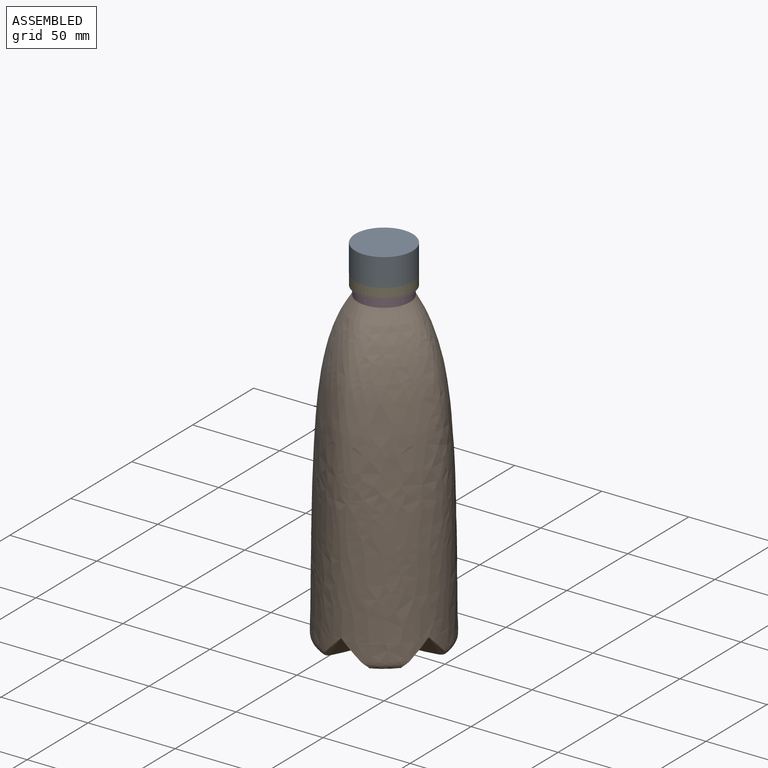
[diagram: assembled view]
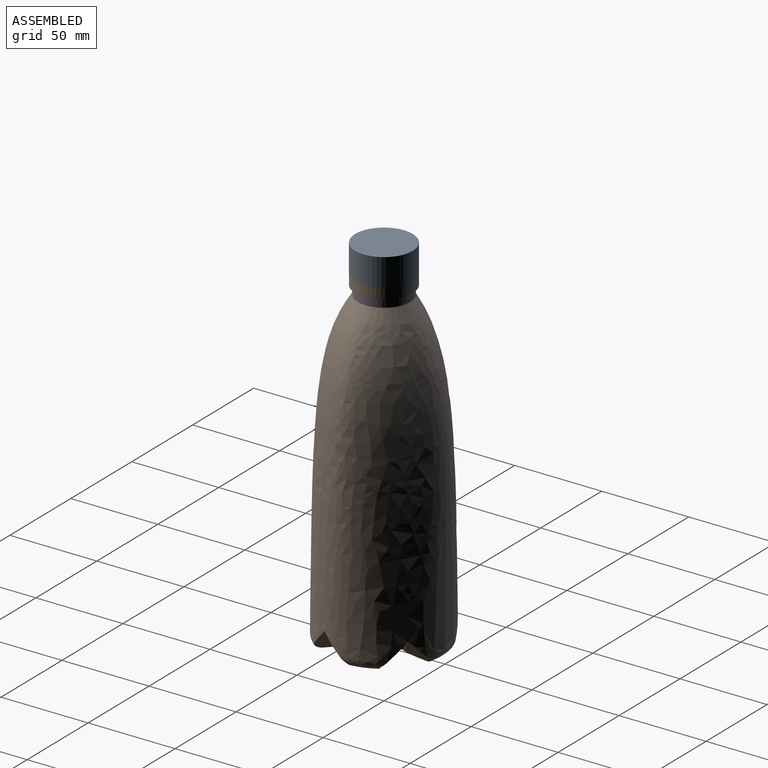
[diagram: assembled view, second angle]
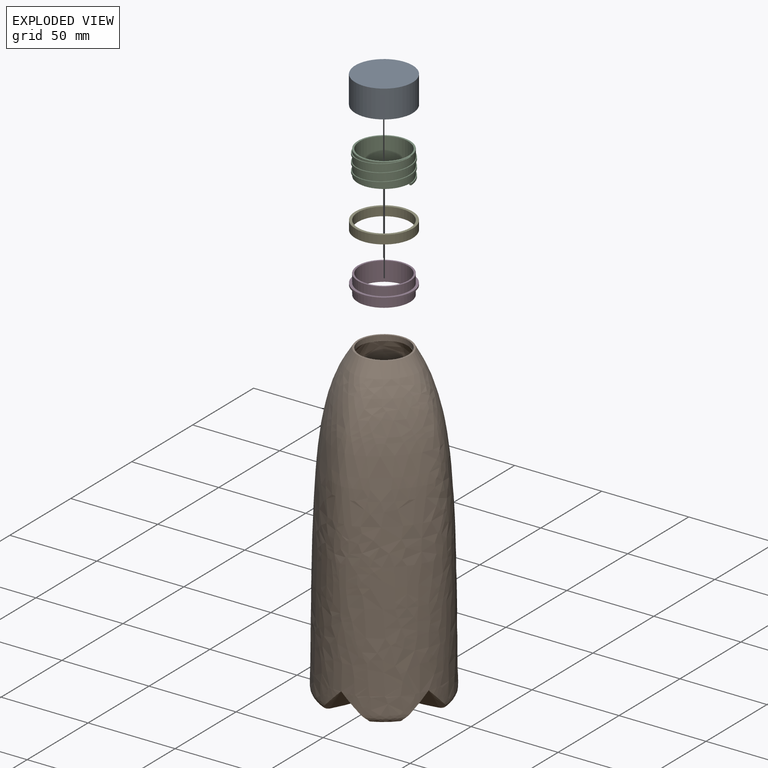
[diagram: exploded view]
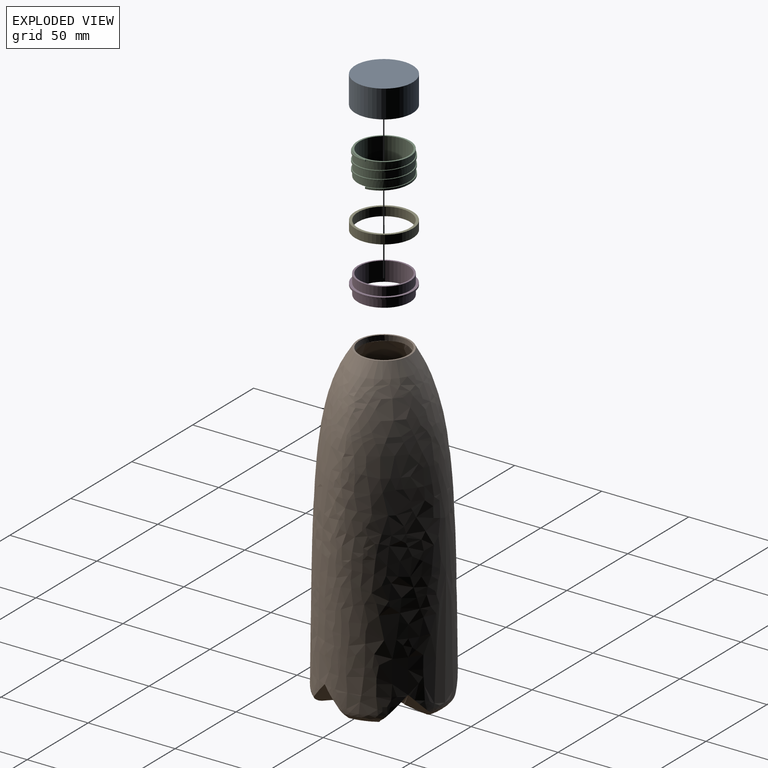
[diagram: exploded view, second angle]
ASSEMBLY  parts=5 mates=4
PART A: 16 faces, bbox 33x35.9x16.2 mm
  f0: cylinder r=15mm len=30mm, axis (0,0,-1), area 345.7mm2, adj f1,f3,f8,f11
  f1: cylinder r=15mm len=30mm, axis (0,0,-1), area 345.5mm2, adj f0,f2,f8,f11
  f2: cylinder r=15mm len=30mm, axis (0,0,-1), area 135.5mm2, adj f1,f5,f8
  f3: cylinder r=15mm len=30mm, axis (0,0,-1), area 314.2mm2, adj f0,f6,f10,f11
  f4: cylinder r=16.5mm len=33mm, axis (0,0,-1), area 1658.8mm2, adj f5,f7
  f5: plane 33x33mm, normal (0,0,-1), area 137.4mm2, adj f2,f4,f8,f9,f11
  f6: plane 30x30mm, normal (0,0,-1), area 392.7mm2, adj f3,f12
  f7: plane 33x33mm, normal (0,0,1), area 855.3mm2, adj f4
  f8: bspline ~35.88x31.07mm, area 143.1mm2, adj f0,f1,f2,f5,f9,f10
  f9: cylinder r=15.54mm len=31.07mm, axis (0,0,1), area 281.9mm2, adj f5,f8,f10,f11
  f10: plane 1x0.54mm, normal (0,-1,0), area 0.5mm2, adj f3,f8,f9,f11
  f11: bspline ~35.88x31.07mm, area 154.2mm2, adj f0,f1,f3,f5,f9,f10
  f12: cylinder r=10mm len=20mm, axis (0,0,1), area 188.5mm2, adj f6,f13
  f13: plane 20x20mm, normal (0,0,-1), area 59.7mm2, adj f12,f14
  f14: cylinder r=9mm len=18mm, axis (0,0,-1), area 113.1mm2, adj f13,f15
  f15: plane 18x18mm, normal (0,0,-1), area 254.5mm2, adj f14
PART B: 51 faces, bbox 80.7x89.6x185 mm
  f0: offset ~166.62x76.41mm, area 29483.3mm2, adj f1,f2,f3,f4,f49,f50
  f1: plane 9.25x9.25mm, normal (0,0,1), area 1.2mm2, adj f0,f4
  f2: plane 9.26x9.26mm, normal (0,0,1), area 1.2mm2, adj f0,f4
  f3: plane 9.25x9.25mm, normal (0,0,1), area 1.2mm2, adj f0,f4
  f4: cylinder r=14mm len=28mm, axis (0,0,1), area 263.3mm2, adj f0,f1,f2,f3,f5,f49
  f5: plane 30x30mm, normal (0,0,1), area 91.1mm2, adj f4,f6
  f6: bspline ~180x75.26mm, area 35029.7mm2, adj f5,f7,f8,f15,f16,f17,f18,f19
  f7: bspline ~15x14.29mm, area 8.3mm2, adj f6,f8,f48
  f8: bspline ~14.52x13.84mm, area 42.3mm2, adj f6,f7,f9,f15,f48
  f9: plane 60.07x57.86mm, normal (0,0,-1), area 1283.8mm2, adj f8,f10,f12,f13,f15,f16,f17,f20
  f10: bspline ~21x15mm, area 99mm2, adj f9,f11,f12
  f11: bspline ~15x14.75mm, area 28.7mm2, adj f10,f29,f30,f31,f32
  f12: bspline ~26.39x15mm, area 146.2mm2, adj f9,f10,f13
  f13: bspline ~21x15mm, area 101.1mm2, adj f9,f12,f14
  f14: bspline ~15x14.75mm, area 25mm2, adj f13,f28,f29
  f15: bspline ~16.7x15mm, area 149.7mm2, adj f6,f8,f9,f16
  f16: bspline ~22.4x17.77mm, area 206.5mm2, adj f6,f9,f15,f17
  f17: bspline ~20.15x15mm, area 149.7mm2, adj f6,f9,f16,f18,f20
  f18: bspline ~15x12.83mm, area 42mm2, adj f6,f17,f19,f20
  f19: bspline ~15x11.91mm, area 7.7mm2, adj f6,f18,f20
  f20: bspline ~22.34x11.37mm, area 134.3mm2, adj f6,f9,f17,f18,f19,f21,f22
  f21: bspline ~15.27x15mm, area 9mm2, adj f6,f20,f22
  f22: bspline ~15.2x14.93mm, area 42.5mm2, adj f6,f9,f20,f21,f23
  f23: bspline ~18.31x15mm, area 149.8mm2, adj f6,f9,f22,f24
  f24: bspline ~25.4x15mm, area 206.5mm2, adj f6,f9,f23,f25
  f25: bspline ~21.64x15mm, area 149.8mm2, adj f6,f9,f24,f26,f28
  f26: bspline ~15x12.8mm, area 42.1mm2, adj f6,f25,f27,f28
  f27: bspline ~15x13.86mm, area 8mm2, adj f6,f26,f28
  f28: bspline ~23.19x18.42mm, area 135.4mm2, adj f6,f9,f14,f25,f26,f27,f29
  f29: bspline ~29.65x15.98mm, area 15.8mm2, adj f6,f11,f14,f28
  f30: bspline ~15x14.83mm, area 1.4mm2, adj f6,f11
  f31: bspline ~15x14.83mm, area 1.1mm2, adj f6,f11,f32
  f32: bspline ~23.53x18.91mm, area 135.3mm2, adj f6,f9,f11,f31,f33,f34,f35
  f33: bspline ~15x13.86mm, area 8mm2, adj f6,f32,f34
  f34: bspline ~15x12.8mm, area 42.1mm2, adj f6,f32,f33,f35
  f35: bspline ~21.64x15mm, area 149.7mm2, adj f6,f9,f32,f34,f36
  f36: bspline ~25.4x15mm, area 206.5mm2, adj f6,f9,f35,f37
  f37: bspline ~18.31x15mm, area 149.8mm2, adj f6,f9,f36,f38
  f38: bspline ~15.2x14.93mm, area 42.5mm2, adj f6,f9,f37,f39,f40
  f39: bspline ~15.27x15mm, area 9mm2, adj f6,f38,f40
  f40: bspline ~27.45x12.02mm, area 134.3mm2, adj f6,f9,f38,f39,f41,f42,f43
  f41: bspline ~11.91x9.54mm, area 7.7mm2, adj f6,f40,f42
  f42: bspline ~15x12.83mm, area 42mm2, adj f6,f40,f41,f43
  f43: bspline ~20.15x15mm, area 149.7mm2, adj f6,f9,f40,f42,f44
  f44: bspline ~22.4x17.77mm, area 206.5mm2, adj f6,f9,f43,f45
  f45: bspline ~16.7x15mm, area 149.7mm2, adj f6,f9,f44,f46
  f46: bspline ~14.52x13.84mm, area 42.3mm2, adj f6,f9,f45,f47,f48
  f47: bspline ~15x14.29mm, area 8.3mm2, adj f6,f46,f48
  f48: bspline ~29.32x7.97mm, area 133.3mm2, adj f6,f7,f8,f9,f46,f47
  f49: plane 9.25x9.25mm, normal (0,0,1), area 1.2mm2, adj f0,f4
  f50: plane 66.41x66.41mm, normal (0,0,1), area 3299.1mm2, adj f0
PART C: 10 faces, bbox 31.1x35.9x15 mm
  f0: cylinder r=15mm len=30mm, axis (0,0,-1), area 1046.6mm2, adj f1,f3,f4,f7,f8
  f1: plane 30x30mm, normal (0,0,1), area 91.1mm2, adj f0,f2
  f2: cylinder r=14mm len=28mm, axis (0,0,-1), area 1231.5mm2, adj f1,f3
  f3: plane 30x30mm, normal (0,0,-1), area 81.8mm2, adj f0,f2,f5,f6,f7
  f4: plane 1x0.54mm, normal (0,1,0), area 0.5mm2, adj f0,f7,f8,f9
  f5: cylinder r=14.54mm len=14.2mm, axis (0,0,1), area 9.8mm2, adj f3,f6,f7
  f6: plane 1x1mm, normal (0,-1,0), area 1mm2, adj f3,f5,f7,f8,f9
  f7: bspline ~35.88x31.07mm, area 163.5mm2, adj f0,f3,f4,f5,f6,f9
  f8: bspline ~35.88x31.07mm, area 154.2mm2, adj f0,f4,f6,f9
  f9: cylinder r=15.54mm len=31.07mm, axis (0,0,1), area 292.8mm2, adj f4,f6,f7,f8
PART D: 8 faces, bbox 33x33x11 mm
  f0: cylinder r=15mm len=30mm, axis (0,0,-1), area 471.2mm2, adj f3,f7
  f1: cylinder r=14mm len=28mm, axis (0,0,-1), area 967.6mm2, adj f6,f7
  f2: cylinder r=16.5mm len=33mm, axis (0,0,-1), area 103.7mm2, adj f3,f4
  f3: plane 33x33mm, normal (0,0,1), area 148.4mm2, adj f0,f2
  f4: plane 33x33mm, normal (0,0,-1), area 148.4mm2, adj f2,f5
  f5: cylinder r=15mm len=30mm, axis (0,0,-1), area 471.2mm2, adj f4,f6
  f6: plane 30x30mm, normal (0,0,-1), area 91.1mm2, adj f1,f5
  f7: plane 30x30mm, normal (0,0,1), area 91.1mm2, adj f0,f1
PART E: 4 faces, bbox 33x33x5 mm
  f0: cylinder r=15mm len=30mm, axis (0,0,-1), area 471.2mm2, adj f2,f3
  f1: cylinder r=16.5mm len=33mm, axis (0,0,-1), area 518.4mm2, adj f2,f3
  f2: plane 33x33mm, normal (0,0,1), area 148.4mm2, adj f0,f1
  f3: plane 33x33mm, normal (0,0,-1), area 148.4mm2, adj f0,f1
PLACE A rot(axis=(0,0,-1),0deg) t=(0,0,0)mm
PLACE B at identity fixed
PLACE C at identity
PLACE D at identity
PLACE E rot(axis=(1,0,0),180deg) t=(0,0,377)mm
MATE slider C.f0 <-> A.f4  axis (0,0,-1) through (0,0,191)mm
MATE fastened B.f4 <-> D.f0  axis (0,0,1) through (0,0,180)mm
MATE fastened E.f0 <-> D.f0  axis (0,0,-1) through (0,0,186)mm
MATE fastened D.f0 <-> C.f0  axis (0,0,1) through (0,0,191)mm
